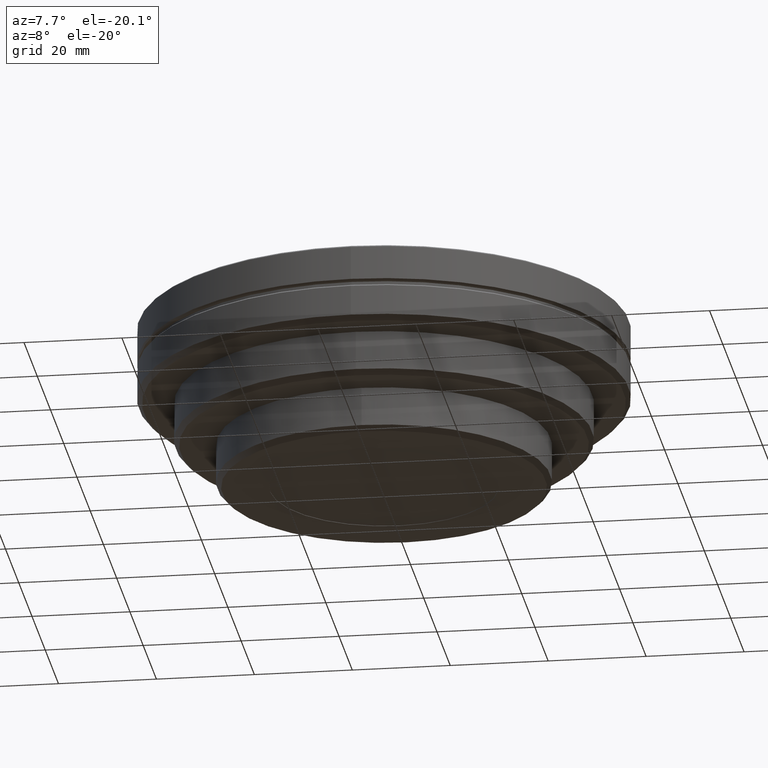
[diagram: clean part render]
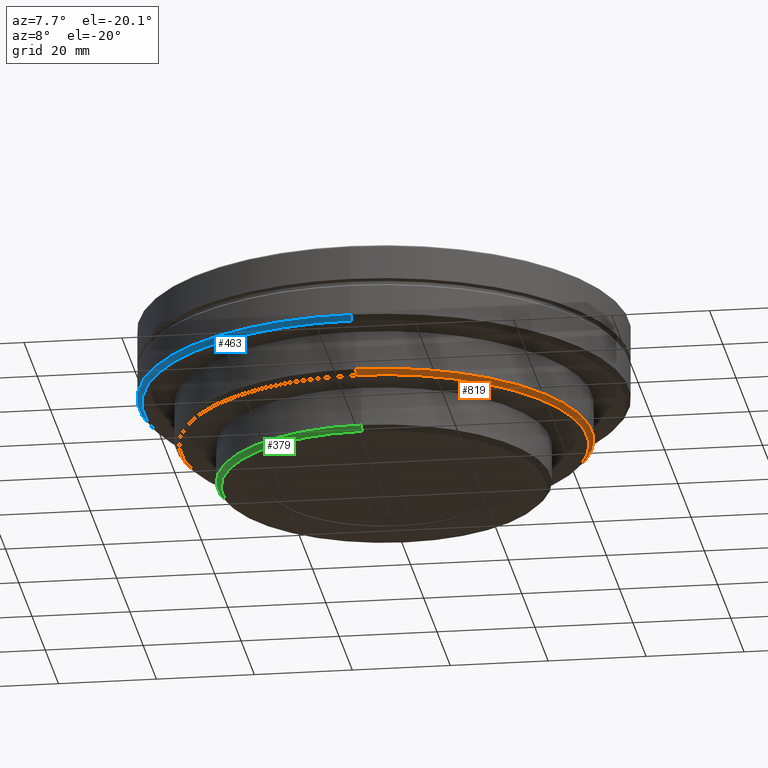
[diagram: same view with three faces highlighted in distinct colors, each labeled with its STEP entity id]
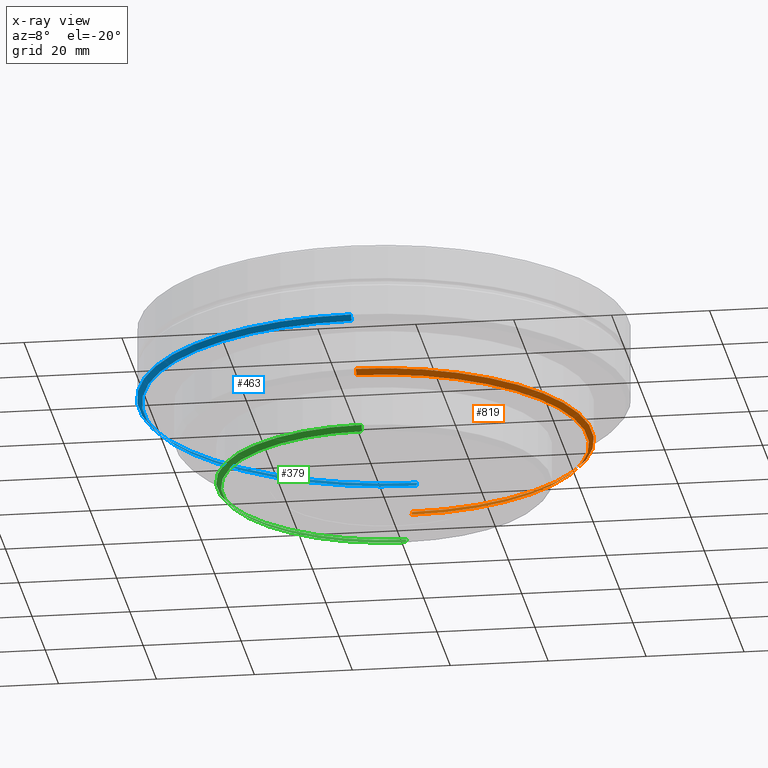
[diagram: x-ray of the same camera — body ghosted, the three highlighted faces saturated]
A machine part, auxiliary view with three faces highlighted in distinct colors.
The next image is the same camera in x-ray (body ghosted, the three faces saturated) — at least one of them is partly hidden behind the body in this view.
Their STEP definitions:

[orange] entity #819 — the highlighted conical surface has half-angle 45 deg.
#4 = EDGE_LOOP ( 'NONE', ( #612, #842, #997, #68 ) ) ;
#40 = DIRECTION ( 'NONE',  ( 0.000000000000000000, 0.000000000000000000, -1.000000000000000000 ) ) ;
#45 = AXIS2_PLACEMENT_3D ( 'NONE', #802, #40, #633 ) ;
#68 = ORIENTED_EDGE ( 'NONE', *, *, #496, .T. ) ;
#76 = VECTOR ( 'NONE', #272, 1000.000000000000114 ) ;
#101 = CARTESIAN_POINT ( 'NONE',  ( 0.000000000000000000, 41.49999999972000353, 17.99999999971999998 ) ) ;
#133 = CARTESIAN_POINT ( 'NONE',  ( 0.000000000000000000, 0.000000000000000000, 18.49999999986000176 ) ) ;
#155 = CONICAL_SURFACE ( 'NONE', #907, 41.99999999986000176, 0.7853981633972997312 ) ;
#199 = DIRECTION ( 'NONE',  ( 0.000000000000000000, 0.000000000000000000, -1.000000000000000000 ) ) ;
#247 = VECTOR ( 'NONE', #860, 1000.000000000000114 ) ;
#271 = CARTESIAN_POINT ( 'NONE',  ( 0.000000000000000000, 0.000000000000000000, 17.99999999971999998 ) ) ;
#272 = DIRECTION ( 'NONE',  ( 0.000000000000000000, 0.7071067811865975328, 0.7071067811864976127 ) ) ;
#279 = CARTESIAN_POINT ( 'NONE',  ( 0.000000000000000000, -41.49999999972000353, 17.99999999971999998 ) ) ;
#287 = VERTEX_POINT ( 'NONE', #898 ) ;
#313 = CIRCLE ( 'NONE', #772, 41.49999999972000353 ) ;
#408 = LINE ( 'NONE', #712, #76 ) ;
#409 = CIRCLE ( 'NONE', #45, 42.50000000000000000 ) ;
#466 = EDGE_CURVE ( 'NONE', #1014, #980, #409, .T. ) ;
#496 = EDGE_CURVE ( 'NONE', #542, #1014, #408, .T. ) ;
#542 = VERTEX_POINT ( 'NONE', #101 ) ;
#584 = LINE ( 'NONE', #279, #247 ) ;
#612 = ORIENTED_EDGE ( 'NONE', *, *, #466, .T. ) ;
#633 = DIRECTION ( 'NONE',  ( 0.000000000000000000, 1.000000000000000000, 0.000000000000000000 ) ) ;
#639 = CARTESIAN_POINT ( 'NONE',  ( 0.000000000000000000, 42.50000000000000000, 19.00000000000000000 ) ) ;
#685 = FACE_OUTER_BOUND ( 'NONE', #4, .T. ) ;
#705 = EDGE_CURVE ( 'NONE', #542, #287, #313, .T. ) ;
#712 = CARTESIAN_POINT ( 'NONE',  ( 0.000000000000000000, 41.49999999972000353, 17.99999999971999998 ) ) ;
#764 = DIRECTION ( 'NONE',  ( 0.000000000000000000, 1.000000000000000000, 0.000000000000000000 ) ) ;
#772 = AXIS2_PLACEMENT_3D ( 'NONE', #271, #199, #904 ) ;
#802 = CARTESIAN_POINT ( 'NONE',  ( 0.000000000000000000, 0.000000000000000000, 19.00000000000000000 ) ) ;
#819 = ADVANCED_FACE ( 'NONE', ( #685 ), #155, .T. ) ;
#841 = DIRECTION ( 'NONE',  ( 0.000000000000000000, 0.000000000000000000, 1.000000000000000000 ) ) ;
#842 = ORIENTED_EDGE ( 'NONE', *, *, #932, .F. ) ;
#860 = DIRECTION ( 'NONE',  ( 0.000000000000000000, -0.7071067811865975328, 0.7071067811864976127 ) ) ;
#894 = CARTESIAN_POINT ( 'NONE',  ( 0.000000000000000000, -42.50000000000000000, 19.00000000000000000 ) ) ;
#898 = CARTESIAN_POINT ( 'NONE',  ( 0.000000000000000000, -41.49999999972000353, 17.99999999971999998 ) ) ;
#904 = DIRECTION ( 'NONE',  ( 0.000000000000000000, 1.000000000000000000, 0.000000000000000000 ) ) ;
#907 = AXIS2_PLACEMENT_3D ( 'NONE', #133, #841, #764 ) ;
#932 = EDGE_CURVE ( 'NONE', #287, #980, #584, .T. ) ;
#980 = VERTEX_POINT ( 'NONE', #894 ) ;
#997 = ORIENTED_EDGE ( 'NONE', *, *, #705, .F. ) ;
#1014 = VERTEX_POINT ( 'NONE', #639 ) ;

[blue] entity #463 — the highlighted conical surface has half-angle 45 deg.
#18 = ORIENTED_EDGE ( 'NONE', *, *, #170, .T. ) ;
#31 = FACE_OUTER_BOUND ( 'NONE', #927, .T. ) ;
#55 = DIRECTION ( 'NONE',  ( 0.000000000000000000, -0.7071067811864980568, 0.7071067811865969777 ) ) ;
#67 = DIRECTION ( 'NONE',  ( 0.000000000000000000, 0.7071067811864980568, 0.7071067811865969777 ) ) ;
#80 = CONICAL_SURFACE ( 'NONE', #217, 49.49999999990999555, 0.7853981633972997312 ) ;
#170 = EDGE_CURVE ( 'NONE', #237, #474, #450, .T. ) ;
#192 = DIRECTION ( 'NONE',  ( 0.000000000000000000, 1.000000000000000000, 0.000000000000000000 ) ) ;
#217 = AXIS2_PLACEMENT_3D ( 'NONE', #642, #813, #422 ) ;
#220 = EDGE_CURVE ( 'NONE', #882, #225, #607, .T. ) ;
#225 = VERTEX_POINT ( 'NONE', #817 ) ;
#237 = VERTEX_POINT ( 'NONE', #716 ) ;
#241 = ORIENTED_EDGE ( 'NONE', *, *, #845, .F. ) ;
#246 = CARTESIAN_POINT ( 'NONE',  ( 0.000000000000000000, -48.99999999981999821, 26.99999999981999821 ) ) ;
#257 = CARTESIAN_POINT ( 'NONE',  ( 0.000000000000000000, 0.000000000000000000, 28.00000000000000000 ) ) ;
#316 = AXIS2_PLACEMENT_3D ( 'NONE', #257, #420, #878 ) ;
#420 = DIRECTION ( 'NONE',  ( 0.000000000000000000, 0.000000000000000000, 1.000000000000000000 ) ) ;
#422 = DIRECTION ( 'NONE',  ( 0.000000000000000000, 1.000000000000000000, 0.000000000000000000 ) ) ;
#450 = CIRCLE ( 'NONE', #837, 48.99999999981999821 ) ;
#463 = ADVANCED_FACE ( 'NONE', ( #31 ), #80, .T. ) ;
#474 = VERTEX_POINT ( 'NONE', #246 ) ;
#514 = VECTOR ( 'NONE', #55, 1000.000000000000000 ) ;
#533 = CARTESIAN_POINT ( 'NONE',  ( 0.000000000000000000, 48.99999999981999821, 26.99999999981999821 ) ) ;
#536 = VECTOR ( 'NONE', #67, 1000.000000000000000 ) ;
#573 = CARTESIAN_POINT ( 'NONE',  ( 0.000000000000000000, 0.000000000000000000, 26.99999999981999821 ) ) ;
#607 = CIRCLE ( 'NONE', #316, 50.00000000000000000 ) ;
#608 = LINE ( 'NONE', #533, #536 ) ;
#614 = CARTESIAN_POINT ( 'NONE',  ( 0.000000000000000000, -48.99999999981999821, 26.99999999981999821 ) ) ;
#642 = CARTESIAN_POINT ( 'NONE',  ( 0.000000000000000000, 0.000000000000000000, 27.49999999990999910 ) ) ;
#658 = DIRECTION ( 'NONE',  ( 0.000000000000000000, 0.000000000000000000, 1.000000000000000000 ) ) ;
#675 = CARTESIAN_POINT ( 'NONE',  ( 0.000000000000000000, 50.00000000000000000, 28.00000000000000000 ) ) ;
#680 = LINE ( 'NONE', #614, #514 ) ;
#716 = CARTESIAN_POINT ( 'NONE',  ( 0.000000000000000000, 48.99999999981999821, 26.99999999981999821 ) ) ;
#720 = ORIENTED_EDGE ( 'NONE', *, *, #828, .T. ) ;
#813 = DIRECTION ( 'NONE',  ( 0.000000000000000000, 0.000000000000000000, 1.000000000000000000 ) ) ;
#817 = CARTESIAN_POINT ( 'NONE',  ( 0.000000000000000000, -50.00000000000000000, 28.00000000000000000 ) ) ;
#828 = EDGE_CURVE ( 'NONE', #474, #225, #680, .T. ) ;
#837 = AXIS2_PLACEMENT_3D ( 'NONE', #573, #658, #192 ) ;
#845 = EDGE_CURVE ( 'NONE', #237, #882, #608, .T. ) ;
#878 = DIRECTION ( 'NONE',  ( 0.000000000000000000, 1.000000000000000000, 0.000000000000000000 ) ) ;
#882 = VERTEX_POINT ( 'NONE', #675 ) ;
#927 = EDGE_LOOP ( 'NONE', ( #18, #720, #1007, #241 ) ) ;
#1007 = ORIENTED_EDGE ( 'NONE', *, *, #220, .F. ) ;

[green] entity #379 — the highlighted conical surface has half-angle 45 deg.
#11 = EDGE_CURVE ( 'NONE', #54, #208, #921, .T. ) ;
#29 = AXIS2_PLACEMENT_3D ( 'NONE', #44, #62, #686 ) ;
#32 = CONICAL_SURFACE ( 'NONE', #163, 33.49999999979000620, 0.7853981633972997312 ) ;
#44 = CARTESIAN_POINT ( 'NONE',  ( 0.000000000000000000, 0.000000000000000000, 8.999999999579001653 ) ) ;
#47 = DIRECTION ( 'NONE',  ( 0.000000000000000000, 1.000000000000000000, 0.000000000000000000 ) ) ;
#54 = VERTEX_POINT ( 'NONE', #609 ) ;
#62 = DIRECTION ( 'NONE',  ( 0.000000000000000000, 0.000000000000000000, 1.000000000000000000 ) ) ;
#78 = EDGE_CURVE ( 'NONE', #250, #691, #283, .T. ) ;
#120 = AXIS2_PLACEMENT_3D ( 'NONE', #598, #377, #222 ) ;
#140 = CARTESIAN_POINT ( 'NONE',  ( 0.000000000000000000, -32.99999999957999819, 8.999999999579001653 ) ) ;
#152 = ORIENTED_EDGE ( 'NONE', *, *, #11, .T. ) ;
#163 = AXIS2_PLACEMENT_3D ( 'NONE', #277, #838, #47 ) ;
#208 = VERTEX_POINT ( 'NONE', #895 ) ;
#222 = DIRECTION ( 'NONE',  ( 0.000000000000000000, 1.000000000000000000, 0.000000000000000000 ) ) ;
#236 = EDGE_CURVE ( 'NONE', #54, #250, #485, .T. ) ;
#250 = VERTEX_POINT ( 'NONE', #810 ) ;
#269 = CARTESIAN_POINT ( 'NONE',  ( 0.000000000000000000, 32.99999999957999819, 8.999999999579001653 ) ) ;
#277 = CARTESIAN_POINT ( 'NONE',  ( 0.000000000000000000, 0.000000000000000000, 9.499999999789000782 ) ) ;
#283 = CIRCLE ( 'NONE', #120, 34.00000000000000000 ) ;
#304 = VECTOR ( 'NONE', #792, 1000.000000000000114 ) ;
#349 = ORIENTED_EDGE ( 'NONE', *, *, #78, .F. ) ;
#351 = VECTOR ( 'NONE', #518, 1000.000000000000114 ) ;
#373 = EDGE_CURVE ( 'NONE', #208, #691, #604, .T. ) ;
#377 = DIRECTION ( 'NONE',  ( 0.000000000000000000, 0.000000000000000000, 1.000000000000000000 ) ) ;
#379 = ADVANCED_FACE ( 'NONE', ( #744 ), #32, .T. ) ;
#458 = ORIENTED_EDGE ( 'NONE', *, *, #236, .F. ) ;
#485 = LINE ( 'NONE', #269, #304 ) ;
#518 = DIRECTION ( 'NONE',  ( 0.000000000000000000, -0.7071067811865474617, 0.7071067811865474617 ) ) ;
#580 = CARTESIAN_POINT ( 'NONE',  ( 0.000000000000000000, -34.00000000000000000, 10.00000000000000000 ) ) ;
#598 = CARTESIAN_POINT ( 'NONE',  ( 0.000000000000000000, 0.000000000000000000, 10.00000000000000000 ) ) ;
#604 = LINE ( 'NONE', #140, #351 ) ;
#609 = CARTESIAN_POINT ( 'NONE',  ( 0.000000000000000000, 32.99999999957999819, 8.999999999579001653 ) ) ;
#623 = EDGE_LOOP ( 'NONE', ( #152, #857, #349, #458 ) ) ;
#686 = DIRECTION ( 'NONE',  ( 0.000000000000000000, 1.000000000000000000, 0.000000000000000000 ) ) ;
#691 = VERTEX_POINT ( 'NONE', #580 ) ;
#744 = FACE_OUTER_BOUND ( 'NONE', #623, .T. ) ;
#792 = DIRECTION ( 'NONE',  ( 0.000000000000000000, 0.7071067811865474617, 0.7071067811865474617 ) ) ;
#810 = CARTESIAN_POINT ( 'NONE',  ( 0.000000000000000000, 34.00000000000000000, 10.00000000000000000 ) ) ;
#838 = DIRECTION ( 'NONE',  ( 0.000000000000000000, 0.000000000000000000, 1.000000000000000000 ) ) ;
#857 = ORIENTED_EDGE ( 'NONE', *, *, #373, .T. ) ;
#895 = CARTESIAN_POINT ( 'NONE',  ( 0.000000000000000000, -32.99999999957999819, 8.999999999579001653 ) ) ;
#921 = CIRCLE ( 'NONE', #29, 32.99999999957999819 ) ;